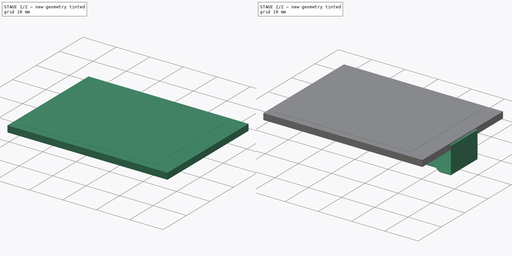
[diagram: build sequence overview — one tinted view per stage of 2, left to right]
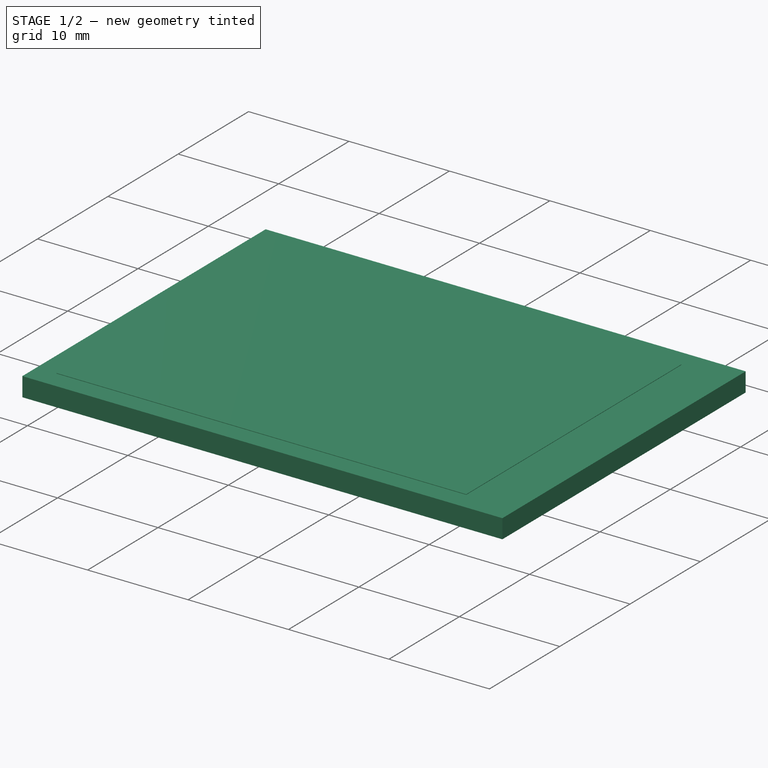
[diagram: stage 1 of 2 — iso view after this stage's code; geometry added in this stage tinted green]
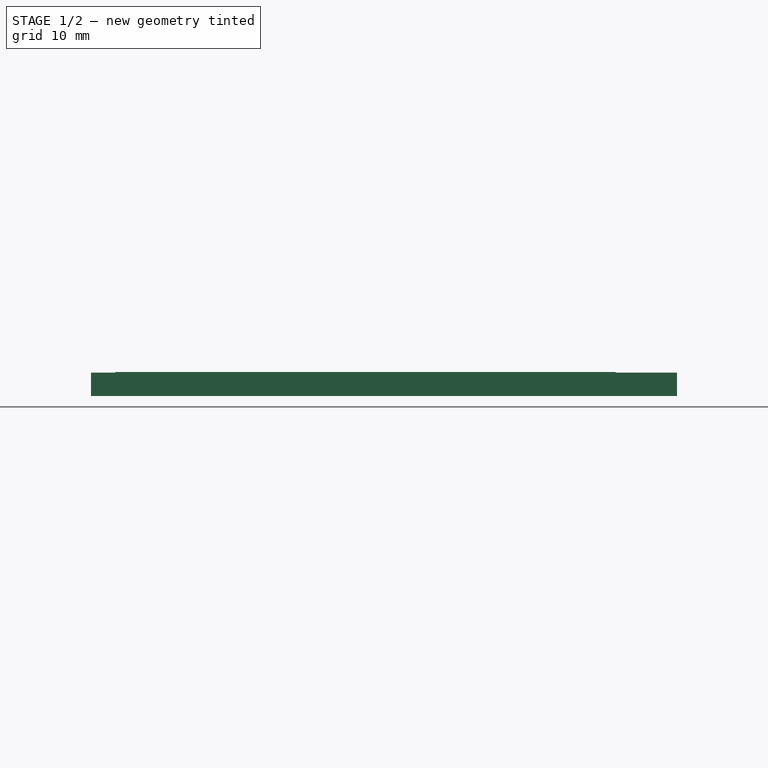
[diagram: stage 1 of 2 — front view after this stage's code; geometry added in this stage tinted green]
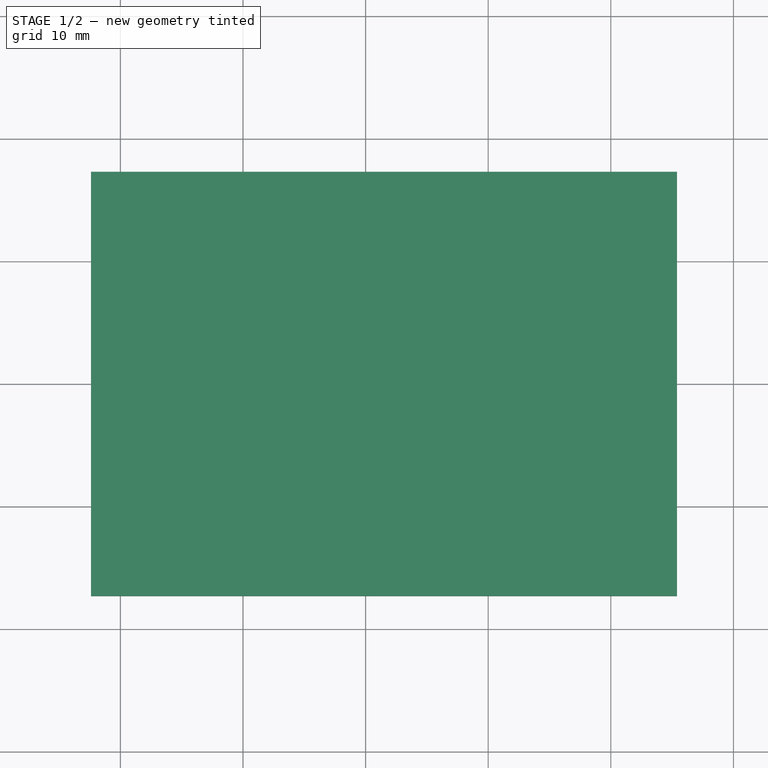
[diagram: stage 1 of 2 — top view after this stage's code; geometry added in this stage tinted green]
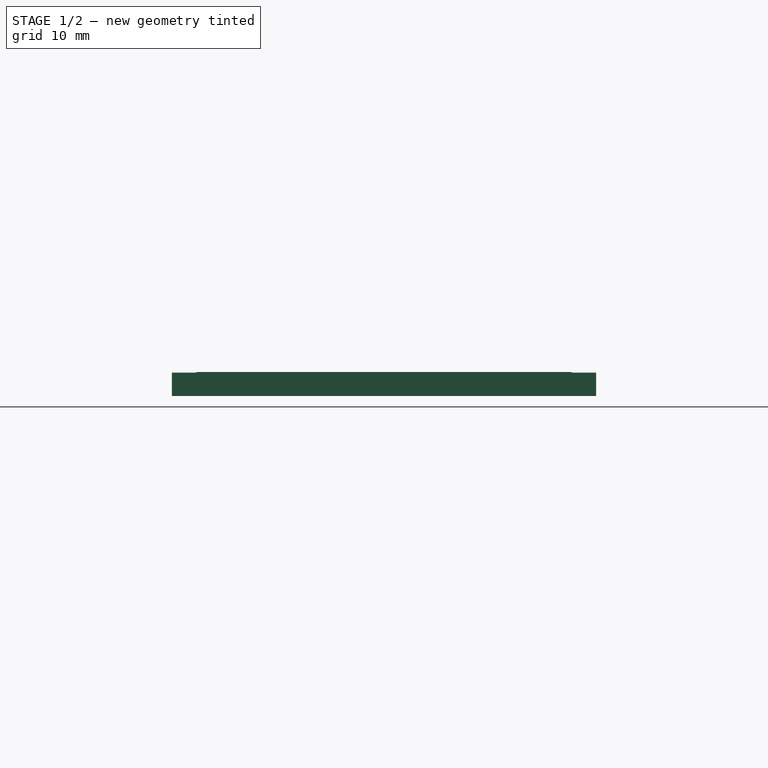
[diagram: stage 1 of 2 — right view after this stage's code; geometry added in this stage tinted green]
FCSTD DOCUMENT  (FreeCAD 1.0R39319 (Git))
Label: SMT-VSN1-DISPLAY
License: All rights reserved
LicenseURL: https://en.wikipedia.org/wiki/All_rights_reserved
objects: Sketcher::SketchObject×4, PartDesign::Pad×4, PartDesign::Plane×1, PartDesign::CoordinateSystem×1, PartDesign::Body×1
note: 23 computed .brp shape members not serialized (recipe doc carries the construction recipe); baked Part::Feature solids carry a one-line shape summary decoded from their .brp

FEATURE [Sketcher::SketchObject] Sketch
  ArcFitTolerance = 0
  AttachmentSupport = -> [XY_Plane]
  FullyConstrained = true
  MakeInternals = false
  MapMode = 5
  sketch-geometry (10):
    g0: LineSegment StartX=-22.4 StartY=-17.3 StartZ=0 EndX=-22.4 EndY=17.3 EndZ=0
    g1: LineSegment StartX=-22.4 StartY=17.3 StartZ=0 EndX=25.4 EndY=17.3 EndZ=0
    g2: LineSegment StartX=25.4 StartY=17.3 StartZ=0 EndX=25.4 EndY=-17.3 EndZ=0
    g3: LineSegment StartX=25.4 StartY=-17.3 StartZ=0 EndX=-22.4 EndY=-17.3 EndZ=0
    g4: GeomPoint [constr] X=0 Y=0 Z=0
    g5: LineSegment [constr] StartX=-20.4 StartY=-15.3 StartZ=0 EndX=-20.4 EndY=15.3 EndZ=0
    g6: LineSegment [constr] StartX=-20.4 StartY=15.3 StartZ=0 EndX=20.4 EndY=15.3 EndZ=0
    g7: LineSegment [constr] StartX=20.4 StartY=15.3 StartZ=0 EndX=20.4 EndY=-15.3 EndZ=0
    g8: LineSegment [constr] StartX=20.4 StartY=-15.3 StartZ=0 EndX=-20.4 EndY=-15.3 EndZ=0
    g9: GeomPoint [constr] X=0 Y=0 Z=0
  constraints (27):
    c: Coincident(g0,g1)
    c: Coincident(g1,g2)
    c: Coincident(g2,g3)
    c: Coincident(g3,g0)
    c: Horizontal(g1)
    c: Horizontal(g3)
    c: Vertical(g0)
    c: Vertical(g2)
    c: Coincident(g4,g-1)
    c: DistanceX(g1,g1) = 47.8
    c: DistanceY(g2,g2) = 34.6
    c: Coincident(g5,g6)
    c: Coincident(g6,g7)
    c: Coincident(g7,g8)
    c: Coincident(g8,g5)
    c: Horizontal(g6)
    c: Horizontal(g8)
    c: Vertical(g5)
    c: Vertical(g7)
    c: Symmetric(g6,g5,g9)
    c: Coincident(g9,g4)
    c: DistanceX(g6,g6) = 40.8
    c: DistanceY(g7,g7) = 30.6
    c: DistanceX(g0,g5) = 2
    c: DistanceY(g5,g0) = 2
    c: DistanceX(g4,g2) = 25.4
    c: DistanceX(g0,g4) = 22.4
FEATURE [Sketcher::SketchObject] Sketch001
  ArcFitTolerance = 0
  AttachmentSupport = -> [XY_Plane]
  FullyConstrained = true
  MakeInternals = false
  MapMode = 5
  sketch-geometry (4):
    g0: LineSegment StartX=-20.4 StartY=-15.3 StartZ=0 EndX=-20.4 EndY=15.3 EndZ=0
    g1: LineSegment StartX=-20.4 StartY=15.3 StartZ=0 EndX=20.4 EndY=15.3 EndZ=0
    g2: LineSegment StartX=20.4 StartY=15.3 StartZ=0 EndX=20.4 EndY=-15.3 EndZ=0
    g3: LineSegment StartX=20.4 StartY=-15.3 StartZ=0 EndX=-20.4 EndY=-15.3 EndZ=0
  constraints (10):
    c: Coincident(g0,g1)
    c: Coincident(g1,g2)
    c: Coincident(g2,g3)
    c: Coincident(g3,g0)
    c: Horizontal(g3)
    c: Vertical(g2)
    c: DistanceX(g3,g3) = 40.8
    c: DistanceY(g2,g2) = 30.6
    c: Symmetric(g0,g0,g-1)
    c: Symmetric(g1,g0,g-2)
FEATURE [PartDesign::Pad] Pad001
  Direction = (0,0,1)
  Length = 1
  Length2 = 10
  Profile = -> Sketch001
  ReferenceAxis = -> Sketch001 [N_Axis]
  Refine = true
  Suppressed = false
  Type = 0
FEATURE [PartDesign::Pad] Pad
  BaseFeature = -> Pad001
  Direction = (0,0,1)
  Length = 1.9
  Length2 = 10
  Midplane = true
  Profile = -> Sketch
  ReferenceAxis = -> Sketch [N_Axis]
  Suppressed = false
  Type = 0
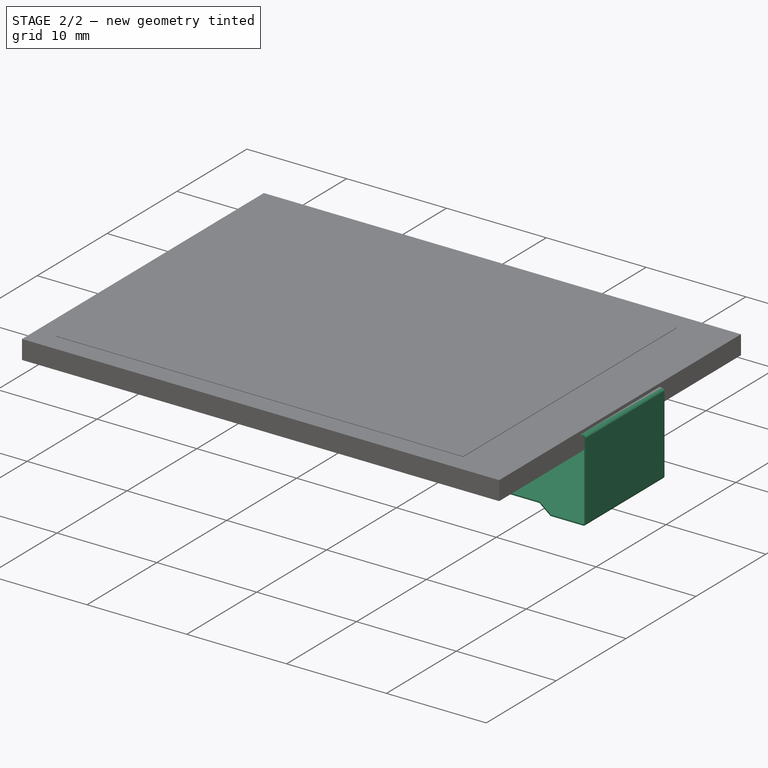
[diagram: stage 2 of 2 — iso view after this stage's code; geometry added in this stage tinted green]
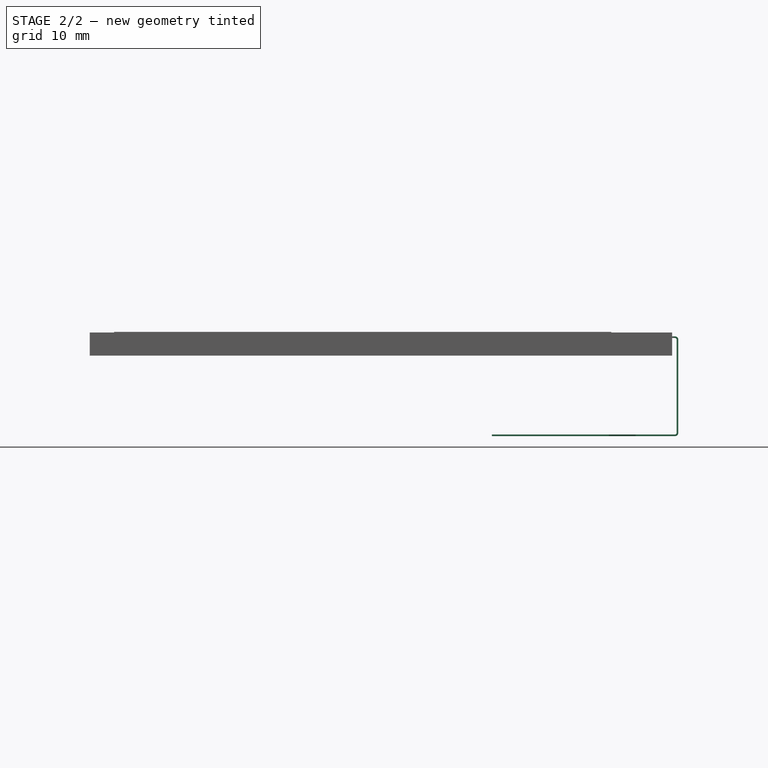
[diagram: stage 2 of 2 — front view after this stage's code; geometry added in this stage tinted green]
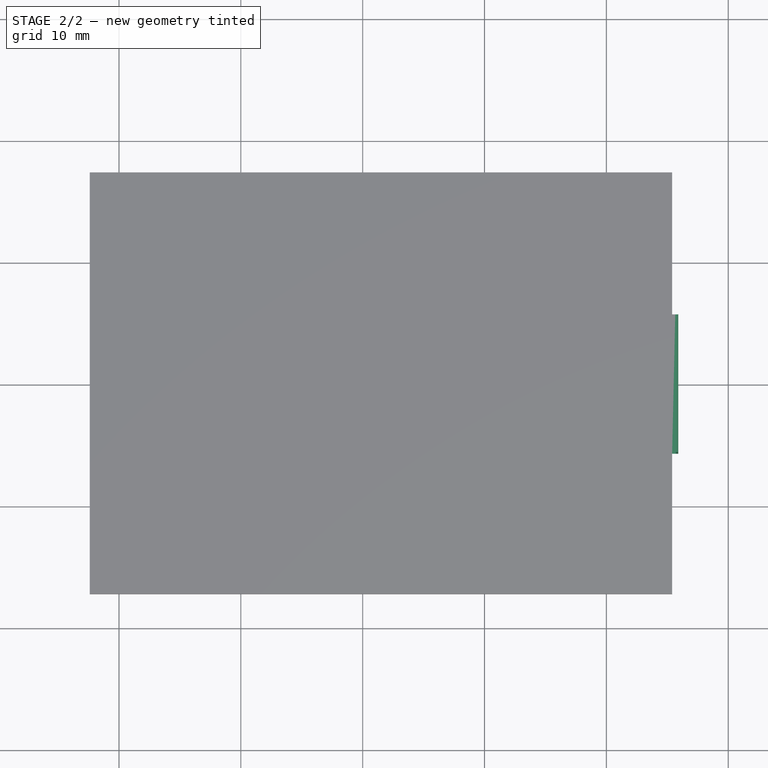
[diagram: stage 2 of 2 — top view after this stage's code; geometry added in this stage tinted green]
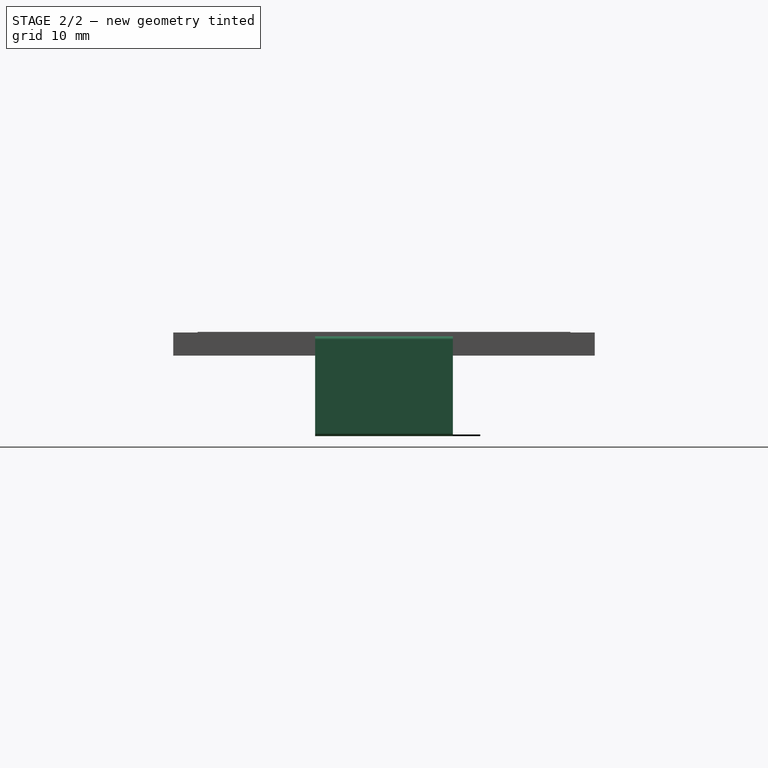
[diagram: stage 2 of 2 — right view after this stage's code; geometry added in this stage tinted green]
FEATURE [Sketcher::SketchObject] Sketch002
  ArcFitTolerance = 0
  AttachmentSupport = -> [XZ_Plane]
  FullyConstrained = true
  MakeInternals = false
  MapMode = 5
  Placement = pos=(0,0,0) rot=(1,0,0;1.5708rad)
  sketch-geometry (15):
    g0: LineSegment [constr] StartX=25.4 StartY=-7.55 StartZ=0 EndX=10.6 EndY=-7.55 EndZ=0
    g1: LineSegment [constr] StartX=0 StartY=-0.95 StartZ=0 EndX=25.4 EndY=-0.95 EndZ=0
    g2: GeomPoint [constr] X=25.4 Y=0.5 Z=0
    g3: LineSegment StartX=25.4 StartY=0.5 StartZ=0 EndX=25.62 EndY=0.5 EndZ=0
    g4: LineSegment StartX=25.77 StartY=0.35 StartZ=0 EndX=25.77 EndY=-7.27 EndZ=0
    g5: LineSegment StartX=25.4 StartY=0.5 StartZ=0 EndX=25.4 EndY=0.63 EndZ=0
    g6: LineSegment StartX=25.4 StartY=0.63 StartZ=0 EndX=25.65 EndY=0.63 EndZ=0
    g7: LineSegment StartX=25.9 StartY=0.38 StartZ=0 EndX=25.9 EndY=-7.3 EndZ=0
    g8: ArcOfCircle CenterX=25.62 CenterY=0.35 CenterZ=0 NormalX=0 NormalY=0 NormalZ=1 AngleXU=0 Radius=0.15 StartAngle=0 EndAngle=1.5708
    g9: ArcOfCircle CenterX=25.65 CenterY=0.38 CenterZ=0 NormalX=0 NormalY=0 NormalZ=1 AngleXU=0 Radius=0.25 StartAngle=0 EndAngle=1.5708
    g10: ArcOfCircle CenterX=25.62 CenterY=-7.27 CenterZ=0 NormalX=0 NormalY=0 NormalZ=1 AngleXU=0 Radius=0.15 StartAngle=4.71239 EndAngle=6.28319
    g11: ArcOfCircle CenterX=25.65 CenterY=-7.3 CenterZ=0 NormalX=0 NormalY=0 NormalZ=1 AngleXU=0 Radius=0.25 StartAngle=4.71239 EndAngle=6.28319
    g12: LineSegment StartX=25.65 StartY=-7.55 StartZ=0 EndX=25.4 EndY=-7.55 EndZ=0
    g13: LineSegment StartX=25.4 StartY=-7.55 StartZ=0 EndX=25.4 EndY=-7.42 EndZ=0
    g14: LineSegment StartX=25.4 StartY=-7.42 StartZ=0 EndX=25.62 EndY=-7.42 EndZ=0
  constraints (41):
    c: Horizontal(g0)
    c: PointOnObject(g1,g-2)
    c: Horizontal(g1)
    c: DistanceX(g1,g1) = 25.4
    c: DistanceY(g1,g-1) = 0.95
    c: DistanceX(g0,g0) = 14.8
    c: DistanceY(g-1,g2) = 0.5
    c: DistanceY(g0,g-1) = 7.55
    c: DistanceY(g0,g1) = 6.6
    c: Coincident(g3,g2)
    c: Vertical(g4)
    c: Horizontal(g3)
    c: Coincident(g5,g3)
    c: Coincident(g6,g5)
    c: Horizontal(g6)
    c: Vertical(g7)
    c: Vertical(g5)
    c: DistanceY(g5,g5) = 0.13
    c: Tangent(g3,g8) = 1.5708
    c: Tangent(g4,g8) = 1.5708
    c: Tangent(g6,g9) = 1.5708
    c: Tangent(g7,g9) = 1.5708
    c: Diameter(g9) = 0.5
    c: Diameter(g8) = 0.3
    c: DistanceX(g4,g7) = 0.13
    c: Tangent(g4,g10) = 1.5708
    c: Tangent(g7,g11) = 1.5708
    c: Equal(g8,g10)
    c: Equal(g9,g11)
    c: DistanceX(g5,g7) = 0.5
    c: Vertical(g5,g1)
    c: Horizontal(g12)
    c: Coincident(g13,g12)
    c: Coincident(g14,g13)
    c: Tangent(g14,g10) = -1.5708
    c: Vertical(g13)
    c: Vertical(g13,g3)
    c: Horizontal(g14)
    c: DistanceY(g13,g13) = 0.13
    c: Tangent(g12,g11) = 1.5708
    c: Coincident(g0,g12)
FEATURE [PartDesign::Pad] Pad002
  BaseFeature = -> Pad
  Direction = (0,-1,2e-16)
  Length = 11.3
  Length2 = 10
  Midplane = true
  Profile = -> Sketch002
  ReferenceAxis = -> Sketch002 [N_Axis]
  Suppressed = false
  Type = 0
FEATURE [PartDesign::Plane] DatumPlane
  AttachmentOffset = pos=(0,0,7.55) rot=(0,0,1;0rad)
  AttachmentSupport = -> [XY_Plane]
  Length = 60.9896
  MapMode = 5
  Placement = pos=(0,0,-7.55) rot=(0,1,0;3.14159rad)
  ResizeMode = 0
  Width = 60.0896
FEATURE [Sketcher::SketchObject] Sketch003
  ArcFitTolerance = 0
  AttachmentSupport = -> [DatumPlane]
  FullyConstrained = false
  MakeInternals = false
  MapMode = 5
  Placement = pos=(0,0,-7.55) rot=(0,1,0;3.14159rad)
  sketch-geometry (15):
    g0: LineSegment StartX=-25.4 StartY=-5.65 StartZ=0 EndX=-25.4 EndY=5.65 EndZ=0
    g1: LineSegment StartX=-25.4 StartY=-5.65 StartZ=0 EndX=-22.4 EndY=-5.65 EndZ=0
    g2: LineSegment StartX=-22.4 StartY=-5.65 StartZ=0 EndX=-20.2 EndY=-4.1 EndZ=0
    g3: LineSegment StartX=-20.2 StartY=-4.1 StartZ=0 EndX=-10.6 EndY=-4.1 EndZ=0
    g4: LineSegment StartX=-10.6 StartY=-4.1 StartZ=0 EndX=-10.6 EndY=7.9 EndZ=0
    g5: LineSegment StartX=-10.6 StartY=7.9 StartZ=0 EndX=-20.2 EndY=7.9 EndZ=0
    g6: LineSegment StartX=-20.2 StartY=7.9 StartZ=0 EndX=-23.3935 EndY=5.65 EndZ=0
    g7: LineSegment StartX=-23.3935 StartY=5.65 StartZ=0 EndX=-25.4 EndY=5.65 EndZ=0
    g8: GeomPoint [constr] X=0 Y=-17.3 Z=0
    g9: LineSegment [constr] StartX=-10.6 StartY=-2.5 StartZ=0 EndX=-12.6 EndY=-2.5 EndZ=0
    g10: LineSegment [constr] StartX=-10.6 StartY=-2.80233 StartZ=0 EndX=-10.6 EndY=-2.19767 EndZ=0
    g11: LineSegment [constr] StartX=-10.6 StartY=-2.19767 StartZ=0 EndX=-12.6 EndY=-2.19767 EndZ=0
    g12: LineSegment [constr] StartX=-12.6 StartY=-2.19767 StartZ=0 EndX=-12.6 EndY=-2.80233 EndZ=0
    g13: LineSegment [constr] StartX=-12.6 StartY=-2.80233 StartZ=0 EndX=-10.6 EndY=-2.80233 EndZ=0
    g14: GeomPoint [constr] X=-11.6 Y=-2.5 Z=0
  constraints (45):
    c: DistanceY(g0,g0) = 11.3
    c: Symmetric(g0,g0,g-1)
    c: DistanceX(g0,g-1) = 25.4
    c: Coincident(g1,g0)
    c: Horizontal(g1)
    c: Coincident(g2,g1)
    c: Coincident(g3,g2)
    c: Horizontal(g3)
    c: Coincident(g4,g3)
    c: Vertical(g4)
    c: Coincident(g5,g4)
    c: Horizontal(g5)
    c: Coincident(g6,g5)
    c: Coincident(g7,g6)
    c: Coincident(g7,g0)
    c: Horizontal(g7)
    c: DistanceY(g4,g4) = 12
    c: PointOnObject(g8,g-2)
    c: DistanceY(g-1,g8) = -17.3
    c: DistanceX(g0,g3) = 14.8
    c: Parallel(g2,g6)
    c: DistanceX(g1,g1) = 3
    c: DistanceX(g3,g3) = 9.6
    c: Vertical(g5,g2)
    c: DistanceY(g8,g3) = 13.2
    c: PointOnObject(g9,g4)
    c: Horizontal(g9)
    c: DistanceY(g3,g9) = 1.6
    c: DistanceY(g8,g9) = 14.8
    c: Coincident(g10,g11)
    c: Coincident(g11,g12)
    c: Coincident(g12,g13)
    c: Coincident(g13,g10)
    c: Horizontal(g11)
    c: Horizontal(g13)
    c: Vertical(g10)
    c: Vertical(g12)
    c: Symmetric(g11,g10,g14)
    c: PointOnObject(g14,g9)
    c: PointOnObject(g9,g12)
    c: PointOnObject(g10,g4)
    c: DistanceX(g9,g9) = 2
    c: DistanceY(g9,g-1) = 2.5
    c: DistanceY(g-1,g4) = 7.9
    c: DistanceX(g4,g-1) = 10.6
FEATURE [PartDesign::Pad] Pad003
  BaseFeature = -> Pad002
  Direction = (0,0,-1)
  Length = 0.13
  Length2 = 10
  Profile = -> Sketch003
  ReferenceAxis = -> Sketch003 [N_Axis]
  Reversed = true
  Suppressed = false
  Type = 0
FEATURE [PartDesign::CoordinateSystem] LCS_1
  AttacherType = Attacher::AttachEngine3D
  AttachmentSupport = -> [Pad002]
  MapMode = 45
  Placement = pos=(0,0,1) rot=(0,0,1;1.5708rad)
FEATURE [PartDesign::Body] Body  label="SMT-VSN1-DISPLAY"
  AllowCompound = false
  Group = -> [Sketch,Sketch001,Pad001,Pad,Sketch002,Pad002,DatumPlane,Sketch003,Pad003,LCS_1]
  Origin = -> Origin
  Tip = -> Pad003
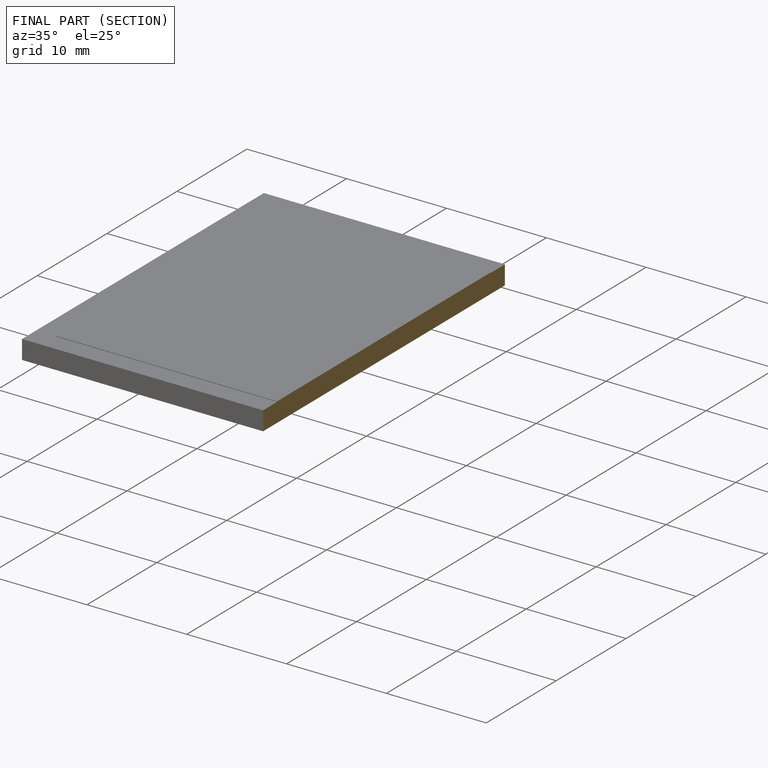
[diagram: finished part — half-section view (interior)]
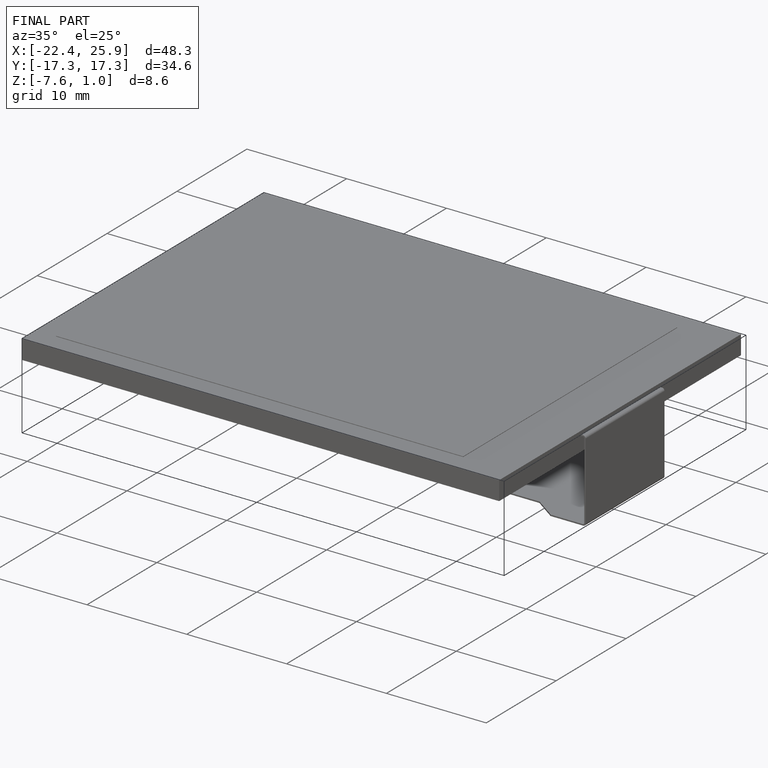
[diagram: finished part — iso view with bounding-box wireframe]
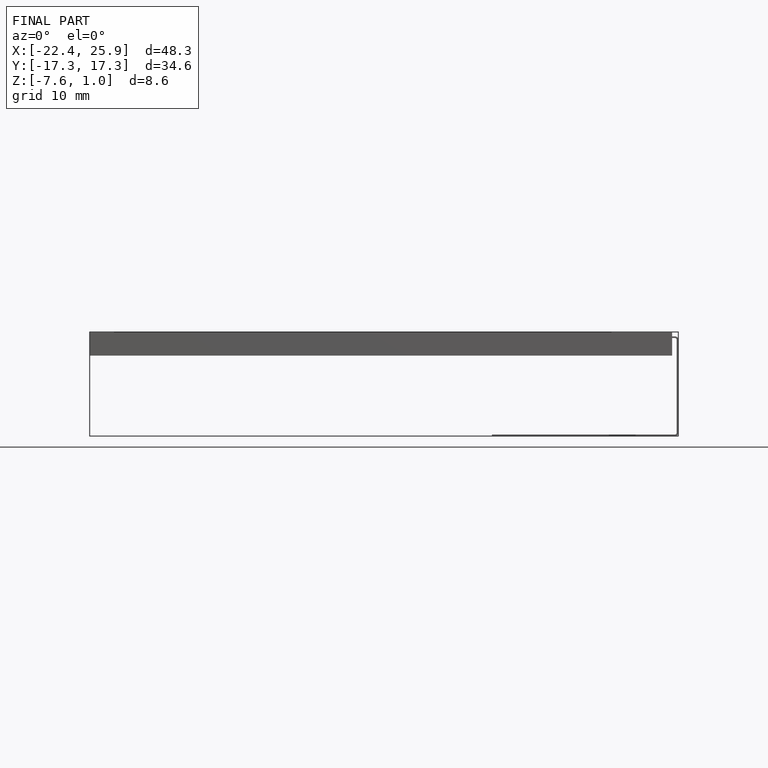
[diagram: finished part — front view with bounding-box wireframe]
